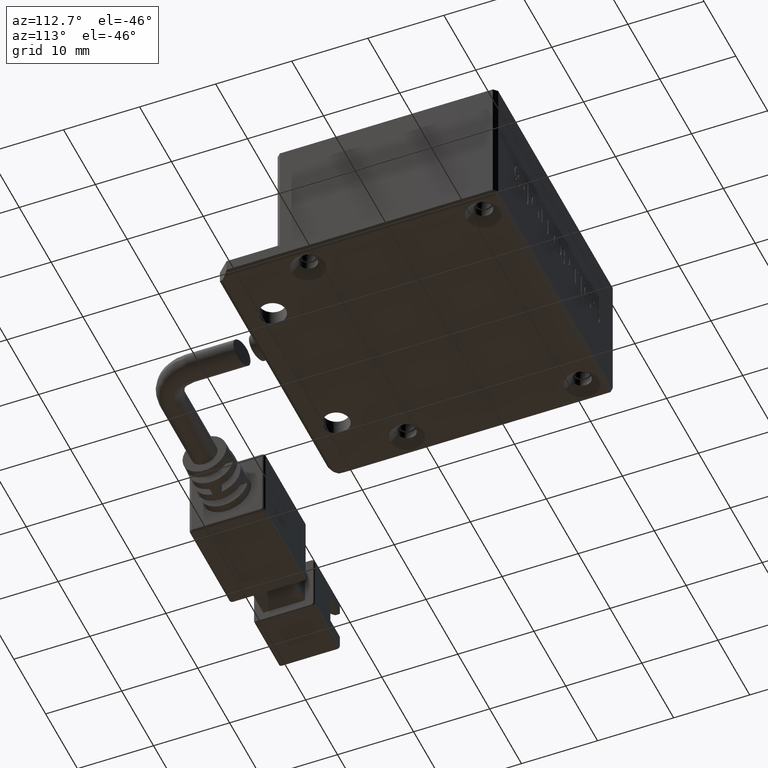
[diagram: clean part render]
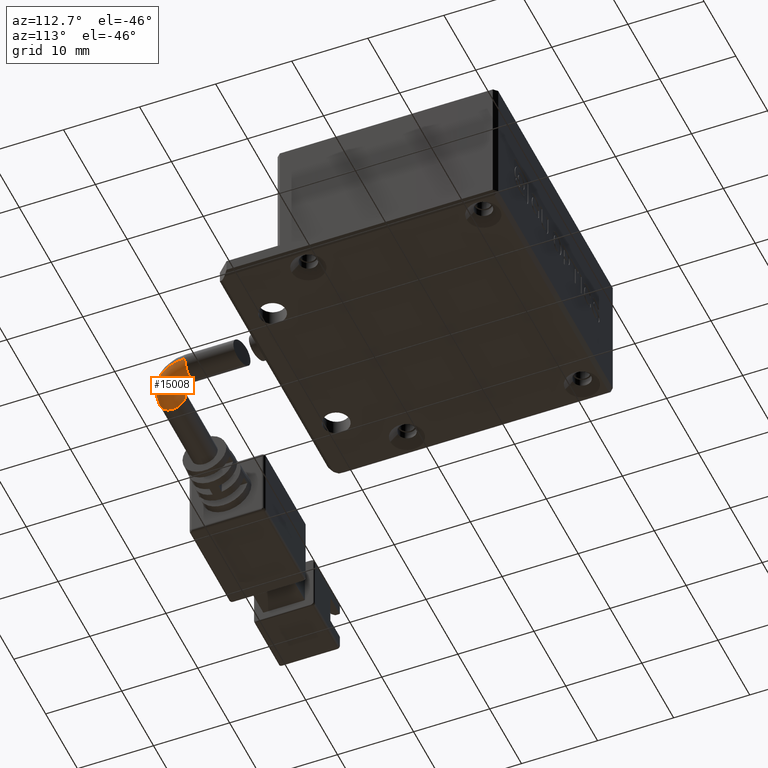
[diagram: same view with one face highlighted and labeled with its STEP entity id]
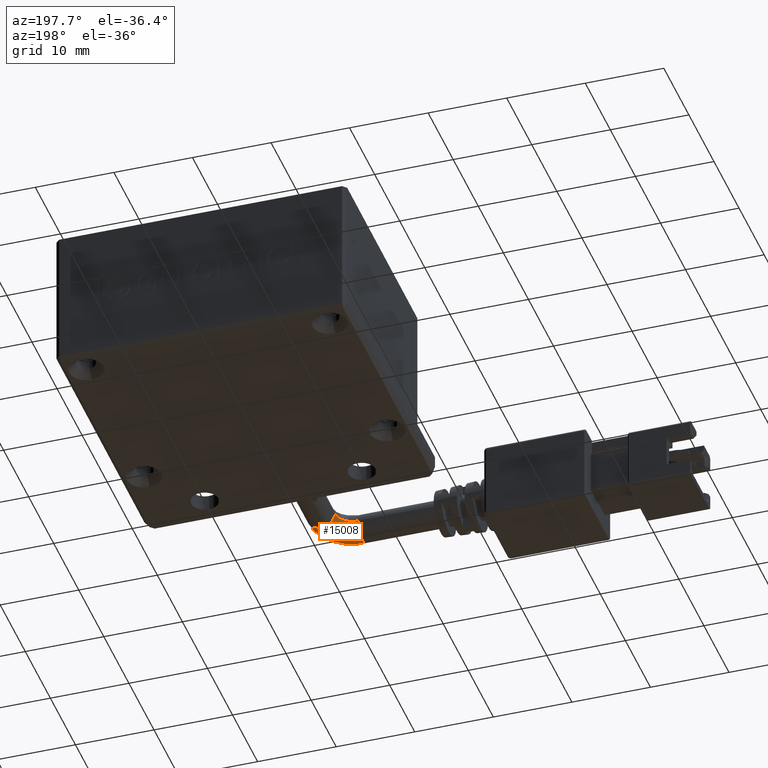
[diagram: same view with one face highlighted and labeled with its STEP entity id]
A machine part, auxiliary view. The second image highlights one B-rep face of the part: STEP entity #15008.
A second angle (auxiliary view) of the same face is appended — the face is thin or edge-on in the first view.
In plain terms, the highlighted face is a freeform B-spline surface patch.
Its self-contained STEP definition (entity closure, byte-faithful):
#50 = CIRCLE ( 'NONE', #520, 1.750000000000001600 ) ;
#168 = CARTESIAN_POINT ( 'NONE',  ( -0.1611285182004746900, -39.80364642993505700, 0.4999999999836311500 ) ) ;
#520 = AXIS2_PLACEMENT_3D ( 'NONE', #1012, #11897, #2564 ) ;
#1012 = CARTESIAN_POINT ( 'NONE',  ( -3.529400534555176400, -38.05364642993505700, 3.999999999983630400 ) ) ;
#1235 = ORIENTED_EDGE ( 'NONE', *, *, #15477, .T. ) ;
#1287 = CIRCLE ( 'NONE', #10737, 2.249999999999995100 ) ;
#1346 = VERTEX_POINT ( 'NONE', #1397 ) ;
#1397 = CARTESIAN_POINT ( 'NONE',  ( -3.529400534555176400, -39.80364642993505700, 3.999999999983630400 ) ) ;
#1721 = EDGE_CURVE ( 'NONE', #9294, #1346, #50, .T. ) ;
#1730 = CARTESIAN_POINT ( 'NONE',  ( 2.220599465444825300, -34.05364642993505000, 0.4999999999836312000 ) ) ;
#2170 = CARTESIAN_POINT ( 'NONE',  ( 2.220599465444822700, -34.05364642993505000, 3.999999999983630400 ) ) ;
#2521 = DIRECTION ( 'NONE',  ( -5.345529420184392100E-049, 1.232595164407830900E-032, 1.000000000000000000 ) ) ;
#2564 = DIRECTION ( 'NONE',  ( 0.0000000000000000000, -1.000000000000000000, 0.0000000000000000000 ) ) ;
#3306 = CARTESIAN_POINT ( 'NONE',  ( -2.211381049894643800, -36.30364642993505000, 0.4999999999836311500 ) ) ;
#3315 = VERTEX_POINT ( 'NONE', #2170 ) ;
#4321 = ORIENTED_EDGE ( 'NONE', *, *, #1721, .F. ) ;
#4872 = CARTESIAN_POINT ( 'NONE',  ( -1.279400534555178000, -34.05364642993504300, 0.4999999999836312000 ) ) ;
#5015 = AXIS2_PLACEMENT_3D ( 'NONE', #15148, #5807, #16697 ) ;
#5807 = DIRECTION ( 'NONE',  ( -5.345529420184392100E-049, 1.232595164407830900E-032, 1.000000000000000000 ) ) ;
#6415 = CARTESIAN_POINT ( 'NONE',  ( -2.211381049894643800, -36.30364642993505000, 3.999999999983630900 ) ) ;
#6596 = CIRCLE ( 'NONE', #5015, 5.749999999999998200 ) ;
#6878 = FACE_OUTER_BOUND ( 'NONE', #13905, .T. ) ;
#7641 = CARTESIAN_POINT ( 'NONE',  ( 0.4705994654448236700, -34.05364642993505000, 3.999999999983630400 ) ) ;
#7917 = CARTESIAN_POINT ( 'NONE',  ( 2.220599465444825300, -37.42191844628975200, 3.999999999983630900 ) ) ;
#7989 = CARTESIAN_POINT ( 'NONE',  ( -1.279400534555177800, -34.05364642993504300, 3.999999999983630400 ) ) ;
#7997 = CIRCLE ( 'NONE', #18961, 1.749999999999999800 ) ;
#8255 = VERTEX_POINT ( 'NONE', #13207 ) ;
#8601 = CARTESIAN_POINT ( 'NONE',  ( -1.279400534555176400, -34.05364642993505000, 3.999999999983630400 ) ) ;
#8806 = CIRCLE ( 'NONE', #14411, 1.749999999999999800 ) ;
#8990 = DIRECTION ( 'NONE',  ( -1.836970198721029700E-016, -1.000000000000000000, 1.232595164407830900E-032 ) ) ;
#9202 = DIRECTION ( 'NONE',  ( 1.000000000000000000, 0.0000000000000000000, 0.0000000000000000000 ) ) ;
#9294 = VERTEX_POINT ( 'NONE', #14439 ) ;
#9313 = ORIENTED_EDGE ( 'NONE', *, *, #16492, .T. ) ;
#9486 = CARTESIAN_POINT ( 'NONE',  ( -3.529400534555177300, -39.80364642993505700, 0.4999999999836312000 ) ) ;
#10737 = AXIS2_PLACEMENT_3D ( 'NONE', #11857, #2521, #13435 ) ;
#11045 = CARTESIAN_POINT ( 'NONE',  ( 2.220599465444824900, -37.42191844628975200, 0.4999999999836311500 ) ) ;
#11857 = CARTESIAN_POINT ( 'NONE',  ( -3.529400534555176400, -34.05364642993505000, 3.999999999983630400 ) ) ;
#11897 = DIRECTION ( 'NONE',  ( -1.000000000000000000, -6.162975822039154700E-033, -5.345529420184391300E-049 ) ) ;
#12618 = CARTESIAN_POINT ( 'NONE',  ( -3.529400534555177300, -36.30364642993504300, 0.4999999999836312000 ) ) ;
#12795 = ORIENTED_EDGE ( 'NONE', *, *, #18674, .T. ) ;
#13207 = CARTESIAN_POINT ( 'NONE',  ( 0.4705994654448236700, -34.05364642993505000, 2.249999999983630000 ) ) ;
#13435 = DIRECTION ( 'NONE',  ( 0.0000000000000000000, 1.000000000000000000, 0.0000000000000000000 ) ) ;
#13905 = EDGE_LOOP ( 'NONE', ( #4321, #12795, #9313, #1235, #18695 ) ) ;
#14061 = CARTESIAN_POINT ( 'NONE',  ( -3.529400534555177300, -39.80364642993505000, 3.999999999983630400 ) ) ;
#14180 = CARTESIAN_POINT ( 'NONE',  ( -1.279400534555174000, -35.37166591459558900, 0.4999999999836311500 ) ) ;
#14411 = AXIS2_PLACEMENT_3D ( 'NONE', #7641, #18519, #9202 ) ;
#14439 = CARTESIAN_POINT ( 'NONE',  ( -3.529400534555176400, -36.30364642993505700, 3.999999999983630400 ) ) ;
#15008 = ADVANCED_FACE ( 'NONE', ( #6878 ), #18962, .T. ) ;
#15148 = CARTESIAN_POINT ( 'NONE',  ( -3.529400534555176400, -34.05364642993505000, 3.999999999983630400 ) ) ;
#15372 = EDGE_CURVE ( 'NONE', #1346, #3315, #6596, .T. ) ;
#15477 = EDGE_CURVE ( 'NONE', #8255, #3315, #8806, .T. ) ;
#15750 = CARTESIAN_POINT ( 'NONE',  ( -3.529400534555177300, -36.30364642993505000, 3.999999999983630400 ) ) ;
#15798 = VERTEX_POINT ( 'NONE', #8601 ) ;
#16492 = EDGE_CURVE ( 'NONE', #15798, #8255, #7997, .T. ) ;
#16697 = DIRECTION ( 'NONE',  ( 0.0000000000000000000, 1.000000000000000000, 0.0000000000000000000 ) ) ;
#17257 = CARTESIAN_POINT ( 'NONE',  ( -0.1611285182004746400, -39.80364642993505000, 3.999999999983630900 ) ) ;
#17317 = CARTESIAN_POINT ( 'NONE',  ( -1.279400534555173800, -35.37166591459558200, 3.999999999983630900 ) ) ;
#18309 = CARTESIAN_POINT ( 'NONE',  ( 0.4705994654448236700, -34.05364642993505000, 3.999999999983630400 ) ) ;
#18519 = DIRECTION ( 'NONE',  ( -1.836970198721029700E-016, -1.000000000000000000, 1.232595164407830900E-032 ) ) ;
#18674 = EDGE_CURVE ( 'NONE', #9294, #15798, #1287, .T. ) ;
#18695 = ORIENTED_EDGE ( 'NONE', *, *, #15372, .F. ) ;
#18786 = CARTESIAN_POINT ( 'NONE',  ( 2.220599465444825300, -34.05364642993505000, 3.999999999983630400 ) ) ;
#18961 = AXIS2_PLACEMENT_3D ( 'NONE', #18309, #8990, #19857 ) ;
#18962 =( BOUNDED_SURFACE ( )  B_SPLINE_SURFACE ( 3, 3, ( 
 ( #14061, #17257, #7917, #18786 ),
 ( #9486, #168, #11045, #1730 ),
 ( #12618, #3306, #14180, #4872 ),
 ( #15750, #6415, #17317, #7989 ) ),
 .UNSPECIFIED., .F., .F., .F. ) 
 B_SPLINE_SURFACE_WITH_KNOTS ( ( 4, 4 ),
 ( 4, 4 ),
 ( 0.0000000000000000000, 1.000000000000000000 ),
 ( 0.0000000000000000000, 1.000000000000000000 ),
 .UNSPECIFIED. ) 
 GEOMETRIC_REPRESENTATION_ITEM ( )  RATIONAL_B_SPLINE_SURFACE ( (
 ( 1.000000000000000000, 0.8047378541243649400, 0.8047378541243649400, 1.000000000000000000),
 ( 0.3333333333333333700, 0.2682459513747883500, 0.2682459513747883500, 0.3333333333333333700),
 ( 0.3333333333333333700, 0.2682459513747883500, 0.2682459513747883500, 0.3333333333333333700),
 ( 1.000000000000000000, 0.8047378541243649400, 0.8047378541243649400, 1.000000000000000000) ) ) 
 REPRESENTATION_ITEM ( '' )  SURFACE ( )  );
#19857 = DIRECTION ( 'NONE',  ( 1.000000000000000000, 0.0000000000000000000, 0.0000000000000000000 ) ) ;